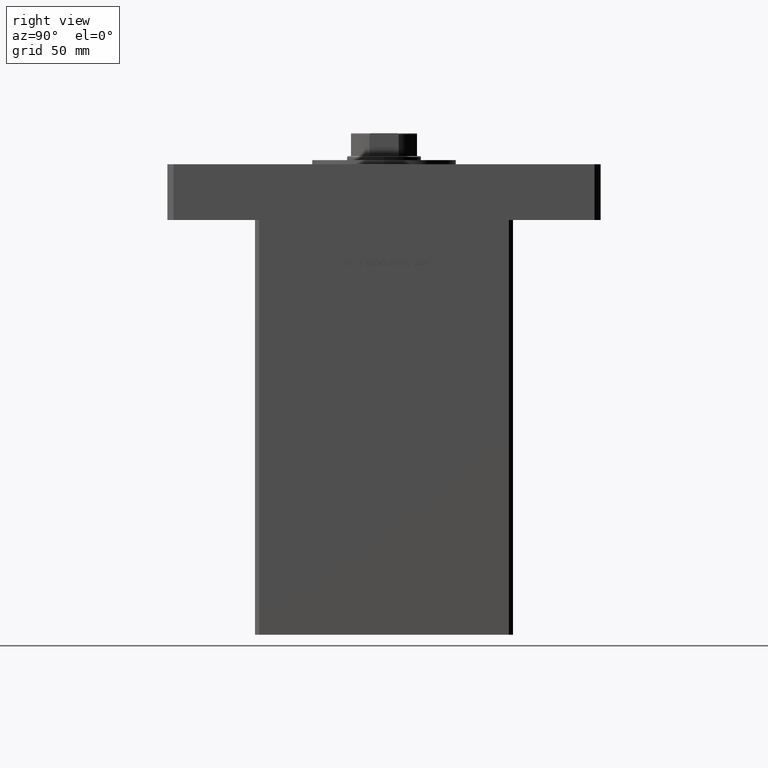
[diagram: clean part render]
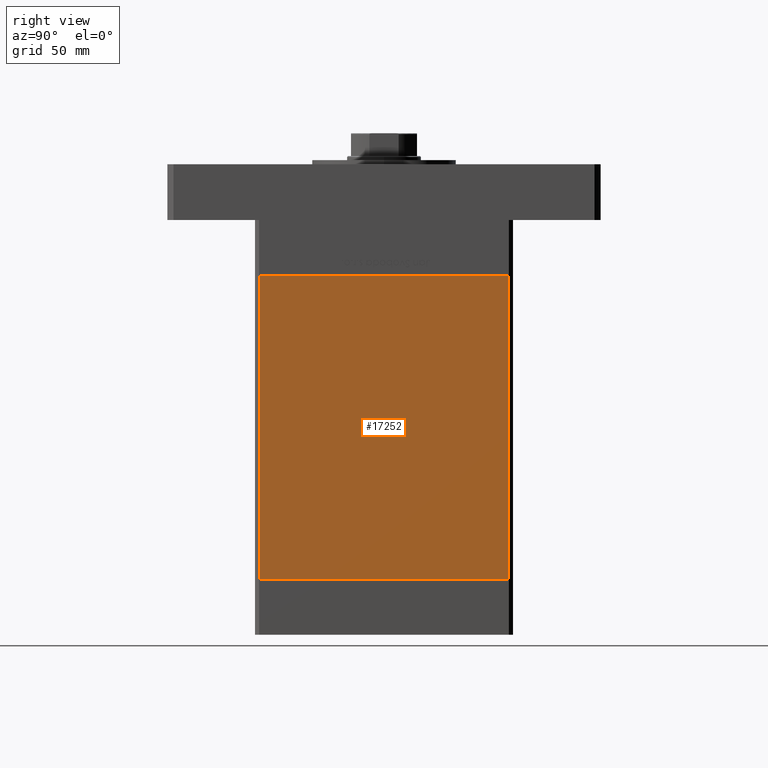
[diagram: same view with one face highlighted and labeled with its STEP entity id]
A machine part, right view. The second image highlights one B-rep face of the part: STEP entity #17252.
In plain terms, the highlighted planar face has unit normal (1, -0, 0).
Its self-contained STEP definition (entity closure, byte-faithful):
#1440 = LINE ( 'NONE', #13363, #9015 ) ;
#2175 = CARTESIAN_POINT ( 'NONE',  ( 75.00000000000001421, 60.50000000000000000, 0.000000000000000000 ) ) ;
#2201 = ORIENTED_EDGE ( 'NONE', *, *, #33019, .T. ) ;
#2441 = LINE ( 'NONE', #2175, #52751 ) ;
#4748 = EDGE_LOOP ( 'NONE', ( #51479, #32011, #31032, #2201 ) ) ;
#9015 = VECTOR ( 'NONE', #14151, 1000.000000000000000 ) ;
#9472 = EDGE_CURVE ( 'NONE', #45522, #49665, #16672, .T. ) ;
#9891 = CARTESIAN_POINT ( 'NONE',  ( 75.00000000000001421, 60.50000000000000000, 147.0000000000000000 ) ) ;
#13363 = CARTESIAN_POINT ( 'NONE',  ( 74.99999999999998579, -60.50000000000000000, 147.0000000000000000 ) ) ;
#14151 = DIRECTION ( 'NONE',  ( -0.000000000000000000, -0.000000000000000000, -1.000000000000000000 ) ) ;
#15449 = EDGE_CURVE ( 'NONE', #45522, #35060, #42385, .T. ) ;
#16672 = LINE ( 'NONE', #33449, #24468 ) ;
#17252 = ADVANCED_FACE ( 'NONE', ( #47000 ), #21286, .T. ) ;
#17759 = DIRECTION ( 'NONE',  ( 1.000000000000000000, -2.293849224432141861E-16, 0.000000000000000000 ) ) ;
#18125 = CARTESIAN_POINT ( 'NONE',  ( 74.99999999999998579, -60.50000000000000000, 147.0000000000000000 ) ) ;
#20427 = EDGE_CURVE ( 'NONE', #35060, #34012, #2441, .T. ) ;
#21286 = PLANE ( 'NONE',  #26827 ) ;
#22436 = VECTOR ( 'NONE', #38849, 1000.000000000000000 ) ;
#24468 = VECTOR ( 'NONE', #32922, 1000.000000000000000 ) ;
#24834 = CARTESIAN_POINT ( 'NONE',  ( 75.00000000000001421, 60.50000000000000000, 147.0000000000000000 ) ) ;
#26797 = DIRECTION ( 'NONE',  ( -2.293849224432141861E-16, -1.000000000000000000, 0.000000000000000000 ) ) ;
#26827 = AXIS2_PLACEMENT_3D ( 'NONE', #9891, #17759, #33453 ) ;
#31032 = ORIENTED_EDGE ( 'NONE', *, *, #9472, .T. ) ;
#32011 = ORIENTED_EDGE ( 'NONE', *, *, #15449, .F. ) ;
#32801 = CARTESIAN_POINT ( 'NONE',  ( 74.99999999999998579, -60.50000000000000000, 0.000000000000000000 ) ) ;
#32922 = DIRECTION ( 'NONE',  ( -2.293849224432141861E-16, -1.000000000000000000, 0.000000000000000000 ) ) ;
#33019 = EDGE_CURVE ( 'NONE', #49665, #34012, #1440, .T. ) ;
#33449 = CARTESIAN_POINT ( 'NONE',  ( 75.00000000000001421, 60.50000000000000000, 147.0000000000000000 ) ) ;
#33453 = DIRECTION ( 'NONE',  ( 2.293849224432141861E-16, 1.000000000000000000, 0.000000000000000000 ) ) ;
#34012 = VERTEX_POINT ( 'NONE', #32801 ) ;
#35060 = VERTEX_POINT ( 'NONE', #41231 ) ;
#38849 = DIRECTION ( 'NONE',  ( -0.000000000000000000, -0.000000000000000000, -1.000000000000000000 ) ) ;
#41231 = CARTESIAN_POINT ( 'NONE',  ( 75.00000000000001421, 60.50000000000000000, 0.000000000000000000 ) ) ;
#42385 = LINE ( 'NONE', #46727, #22436 ) ;
#45522 = VERTEX_POINT ( 'NONE', #24834 ) ;
#46727 = CARTESIAN_POINT ( 'NONE',  ( 75.00000000000001421, 60.50000000000000000, 147.0000000000000000 ) ) ;
#47000 = FACE_OUTER_BOUND ( 'NONE', #4748, .T. ) ;
#49665 = VERTEX_POINT ( 'NONE', #18125 ) ;
#51479 = ORIENTED_EDGE ( 'NONE', *, *, #20427, .F. ) ;
#52751 = VECTOR ( 'NONE', #26797, 1000.000000000000000 ) ;